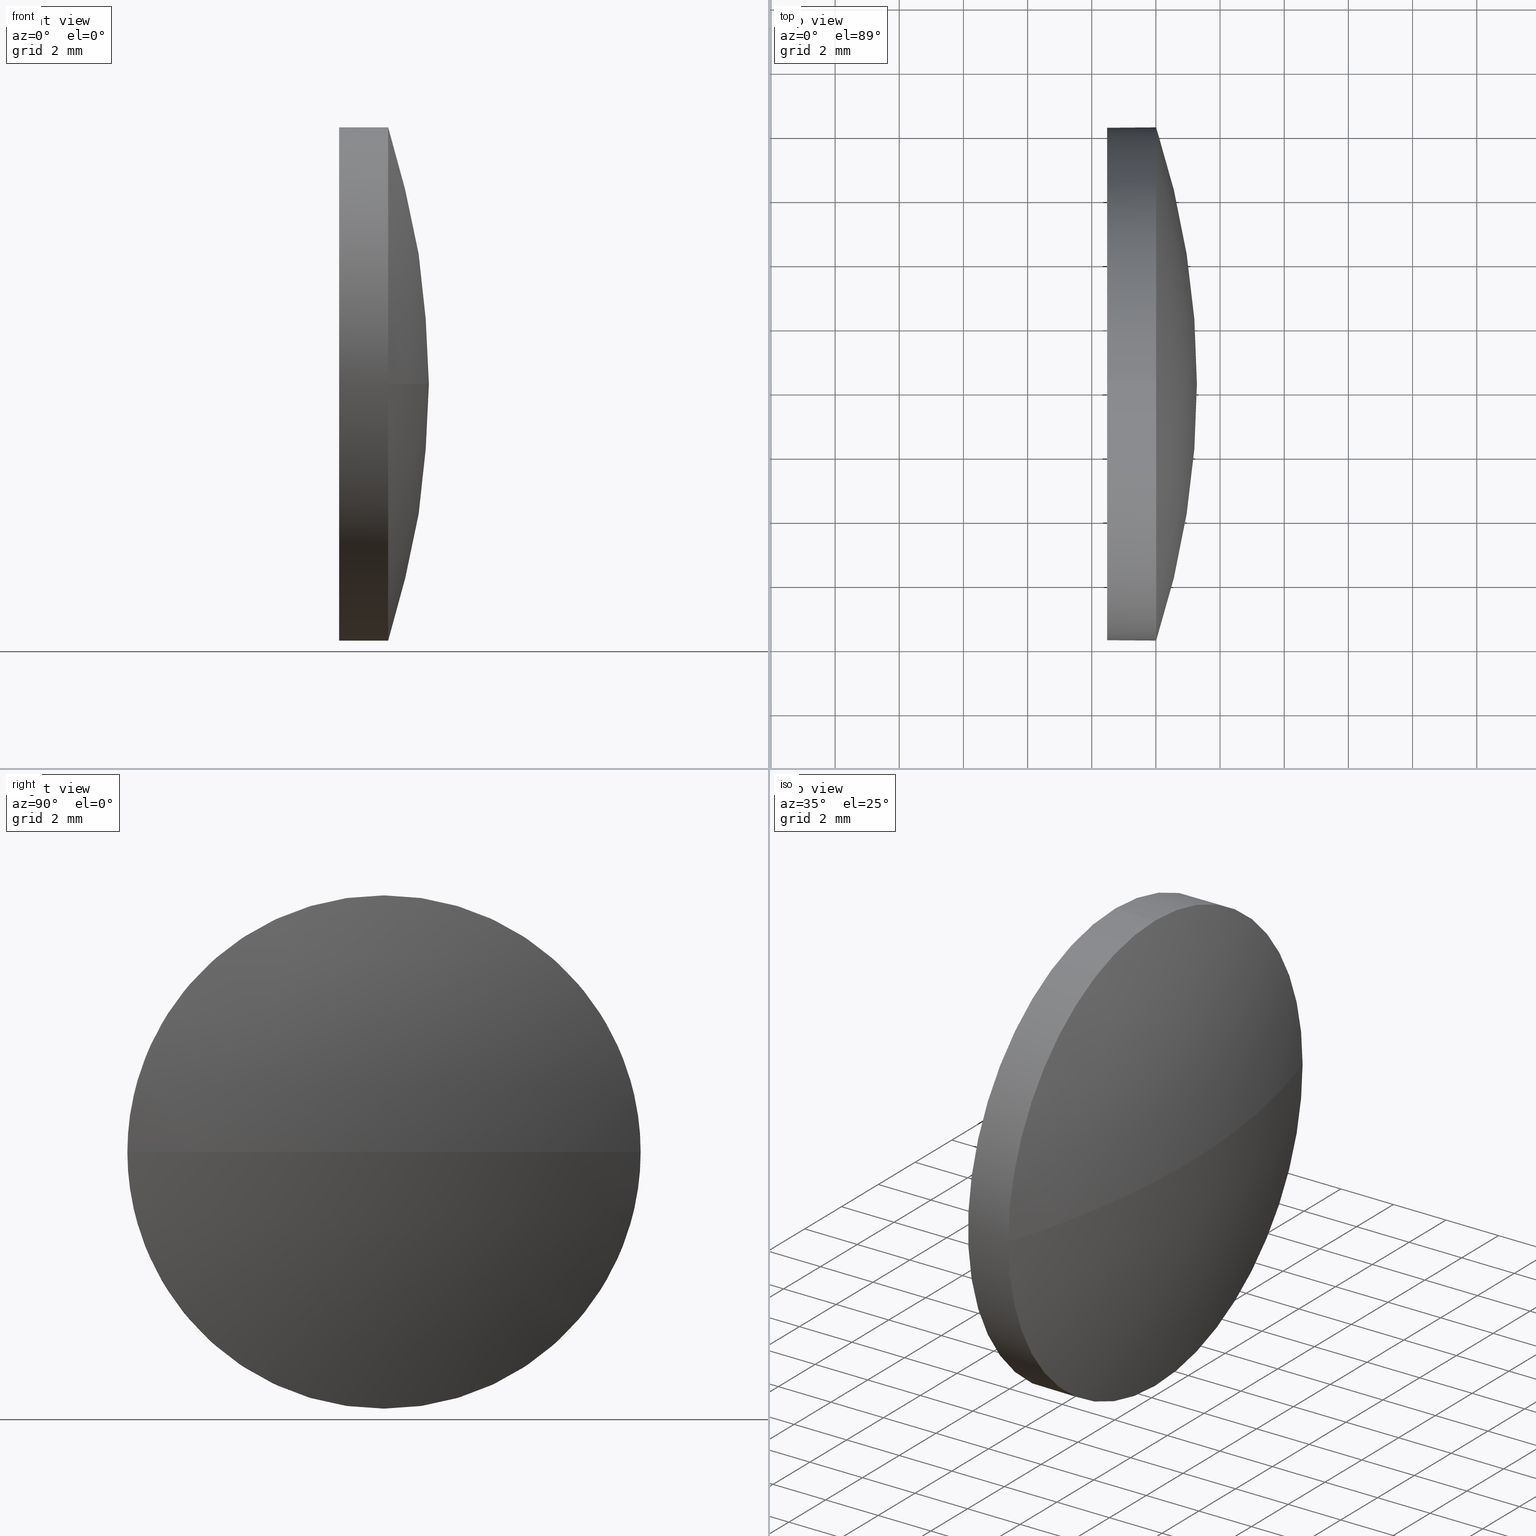
[diagram: canonical four-view strip — front | top / right | iso, engineering-drawing reading convention]
A machine part, canonical four-view strip (front | top / right | iso — engineering-drawing reading convention). The complete STEP part file that produces these views, byte-faithful:
ISO-10303-21;
HEADER;
FILE_DESCRIPTION (( 'STEP AP214' ),
    '1' );
FILE_NAME ('100201.STEP',
    '2019-05-22T07:16:52',
    ( '' ),
    ( '' ),
    'SwSTEP 2.0',
    'SolidWorks 2016',
    '' );
FILE_SCHEMA (( 'AUTOMOTIVE_DESIGN' ));
ENDSEC;

DATA;
#1 = ADVANCED_FACE ( 'NONE', ( #155 ), #119, .T. ) ;
#2 = APPLICATION_CONTEXT ( 'automotive_design' ) ;
#3 = PRESENTATION_LAYER_ASSIGNMENT (  '', '', ( #183 ) ) ;
#4 = DIRECTION ( 'NONE',  ( 0.0000000000000000000, 0.0000000000000000000, 1.000000000000000000 ) ) ;
#5 = CYLINDRICAL_SURFACE ( 'NONE', #16, 8.000000000000007100 ) ;
#6 = CARTESIAN_POINT ( 'NONE',  ( 500.8301248111171200, 80.19945685201562900, 0.0000000000000000000 ) ) ;
#7 = PRODUCT_DEFINITION_CONTEXT ( 'detailed design', #132, 'design' ) ;
#8 = DIRECTION ( 'NONE',  ( 0.0000000000000000000, -1.000000000000000000, -1.224646799147353200E-016 ) ) ;
#9 = DIRECTION ( 'NONE',  ( 0.0000000000000000000, -1.000000000000000000, 0.0000000000000000000 ) ) ;
#10 = CARTESIAN_POINT ( 'NONE',  ( 504.0080972841085400, 80.19945685201562900, 0.0000000000000000000 ) ) ;
#11 = CARTESIAN_POINT ( 'NONE',  ( 500.8301248111171200, 80.19945685201562900, 8.000000000000007100 ) ) ;
#12 = CARTESIAN_POINT ( 'NONE',  ( 502.4780972841085100, 80.19945685201562900, 0.0000000000000000000 ) ) ;
#13 = CARTESIAN_POINT ( 'NONE',  ( 502.4780972841085100, 80.19945685201562900, 0.0000000000000000000 ) ) ;
#14 = FACE_OUTER_BOUND ( 'NONE', #141, .T. ) ;
#15 = CIRCLE ( 'NONE', #125, 8.000000000000007100 ) ;
#16 = AXIS2_PLACEMENT_3D ( 'NONE', #6, #182, #152 ) ;
#17 = SHAPE_DEFINITION_REPRESENTATION ( #41, #97 ) ;
#18 = SURFACE_SIDE_STYLE ('',( #171 ) ) ;
#19 = SURFACE_SIDE_STYLE ('',( #102 ) ) ;
#20 = EDGE_LOOP ( 'NONE', ( #184, #104, #61, #55 ) ) ;
#21 = DIRECTION ( 'NONE',  ( -1.000000000000000000, -0.0000000000000000000, -0.0000000000000000000 ) ) ;
#22 = CARTESIAN_POINT ( 'NONE',  ( 479.4462468904077400, 80.19945685201564300, 0.0000000000000000000 ) ) ;
#23 = CARTESIAN_POINT ( 'NONE',  ( 505.2780972841085300, 80.19945685201564300, 0.0000000000000000000 ) ) ;
#24 = CARTESIAN_POINT ( 'NONE',  ( 504.0080972841085400, 80.19945685201562900, 0.0000000000000000000 ) ) ;
#25 = EDGE_LOOP ( 'NONE', ( #67, #39 ) ) ;
#26 = ORIENTED_EDGE ( 'NONE', *, *, #174, .F. ) ;
#27 = VERTEX_POINT ( 'NONE', #112 ) ;
#28 = VECTOR ( 'NONE', #153, 1000.000000000000000 ) ;
#29 = DIRECTION ( 'NONE',  ( 1.000000000000000000, 0.0000000000000000000, 0.0000000000000000000 ) ) ;
#30 = CARTESIAN_POINT ( 'NONE',  ( 502.4780972841085100, 80.19945685201562900, 0.0000000000000000000 ) ) ;
#31 = VERTEX_POINT ( 'NONE', #77 ) ;
#32 = DIRECTION ( 'NONE',  ( 0.0000000000000000000, 0.0000000000000000000, -1.000000000000000000 ) ) ;
#33 = EDGE_CURVE ( 'NONE', #62, #31, #38, .T. ) ;
#34 = DIRECTION ( 'NONE',  ( -1.000000000000000000, -0.0000000000000000000, -0.0000000000000000000 ) ) ;
#35 = CIRCLE ( 'NONE', #73, 8.000000000000007100 ) ;
#36 =( GEOMETRIC_REPRESENTATION_CONTEXT ( 3 ) GLOBAL_UNCERTAINTY_ASSIGNED_CONTEXT ( ( #162 ) ) GLOBAL_UNIT_ASSIGNED_CONTEXT ( ( #123, #136, #150 ) ) REPRESENTATION_CONTEXT ( 'NONE', 'WORKASPACE' ) );
#37 = CIRCLE ( 'NONE', #137, 8.000000000000007100 ) ;
#38 = CIRCLE ( 'NONE', #51, 25.83185039370084000 ) ;
#39 = ORIENTED_EDGE ( 'NONE', *, *, #145, .T. ) ;
#40 = FILL_AREA_STYLE_COLOUR ( '', #63 ) ;
#41 = PRODUCT_DEFINITION_SHAPE ( 'NONE', 'NONE',  #167 ) ;
#42 = EDGE_CURVE ( 'NONE', #170, #27, #35, .T. ) ;
#43 = APPLICATION_PROTOCOL_DEFINITION ( 'draft international standard', 'automotive_design', 1998, #132 ) ;
#44 = COLOUR_RGB ( '',1.000000000000000000, 1.000000000000000000, 1.000000000000000000 ) ;
#45 = DIRECTION ( 'NONE',  ( 0.0000000000000000000, 0.0000000000000000000, 1.000000000000000000 ) ) ;
#46 = SURFACE_STYLE_USAGE ( .BOTH. , #19 ) ;
#47 = ORIENTED_EDGE ( 'NONE', *, *, #128, .T. ) ;
#48 = ORIENTED_EDGE ( 'NONE', *, *, #42, .T. ) ;
#49 = DIRECTION ( 'NONE',  ( -1.000000000000000000, -0.0000000000000000000, -0.0000000000000000000 ) ) ;
#50 = AXIS2_PLACEMENT_3D ( 'NONE', #146, #49, #81 ) ;
#51 = AXIS2_PLACEMENT_3D ( 'NONE', #59, #161, #8 ) ;
#52 = ADVANCED_FACE ( 'NONE', ( #14 ), #5, .T. ) ;
#53 = AXIS2_PLACEMENT_3D ( 'NONE', #110, #94, #180 ) ;
#54 = STYLED_ITEM ( 'NONE', ( #135 ), #97 ) ;
#55 = ORIENTED_EDGE ( 'NONE', *, *, #128, .F. ) ;
#56 = PRESENTATION_LAYER_ASSIGNMENT (  '', '', ( #54 ) ) ;
#57 = FILL_AREA_STYLE ('',( #40 ) ) ;
#58 = CARTESIAN_POINT ( 'NONE',  ( 479.4462468904077400, 80.19945685201564300, 0.0000000000000000000 ) ) ;
#59 = CARTESIAN_POINT ( 'NONE',  ( 479.4462468904077400, 80.19945685201564300, 0.0000000000000000000 ) ) ;
#60 = DIRECTION ( 'NONE',  ( 0.0000000000000000000, 0.0000000000000000000, -1.000000000000000000 ) ) ;
#61 = ORIENTED_EDGE ( 'NONE', *, *, #66, .F. ) ;
#62 = VERTEX_POINT ( 'NONE', #23 ) ;
#63 = COLOUR_RGB ( '',1.000000000000000000, 1.000000000000000000, 1.000000000000000000 ) ;
#64 = CARTESIAN_POINT ( 'NONE',  ( 504.0080972841085400, 80.19945685201562900, 0.0000000000000000000 ) ) ;
#65 = CIRCLE ( 'NONE', #130, 25.83185039370084000 ) ;
#66 = EDGE_CURVE ( 'NONE', #89, #170, #78, .T. ) ;
#67 = ORIENTED_EDGE ( 'NONE', *, *, #86, .T. ) ;
#68 = ORIENTED_EDGE ( 'NONE', *, *, #42, .F. ) ;
#69 = MECHANICAL_DESIGN_GEOMETRIC_PRESENTATION_REPRESENTATION (  '', ( #54 ), #36 ) ;
#70 = AXIS2_PLACEMENT_3D ( 'NONE', #30, #29, #60 ) ;
#71 = FACE_OUTER_BOUND ( 'NONE', #156, .T. ) ;
#72 = SURFACE_STYLE_USAGE ( .BOTH. , #18 ) ;
#73 = AXIS2_PLACEMENT_3D ( 'NONE', #10, #21, #124 ) ;
#74 = DIRECTION ( 'NONE',  ( 0.0000000000000000000, 0.0000000000000000000, 1.000000000000000000 ) ) ;
#75 = CARTESIAN_POINT ( 'NONE',  ( 504.0080972841085400, 80.19945685201562900, 0.0000000000000000000 ) ) ;
#76 =( NAMED_UNIT ( * ) PLANE_ANGLE_UNIT ( ) SI_UNIT ( $, .RADIAN. ) );
#77 = CARTESIAN_POINT ( 'NONE',  ( 504.0080972841085400, 88.19945685201562900, 9.797174393178815800E-016 ) ) ;
#78 = CIRCLE ( 'NONE', #115, 8.000000000000007100 ) ;
#79 = EDGE_CURVE ( 'NONE', #27, #113, #181, .T. ) ;
#80 = DIRECTION ( 'NONE',  ( -1.000000000000000000, -0.0000000000000000000, -0.0000000000000000000 ) ) ;
#81 = DIRECTION ( 'NONE',  ( 0.0000000000000000000, 0.0000000000000000000, 1.000000000000000000 ) ) ;
#82 = DIRECTION ( 'NONE',  ( 0.0000000000000000000, 0.0000000000000000000, 1.000000000000000000 ) ) ;
#83 = MECHANICAL_DESIGN_GEOMETRIC_PRESENTATION_REPRESENTATION (  '', ( #183 ), #92 ) ;
#84 = EDGE_LOOP ( 'NONE', ( #26, #160, #48, #108, #133 ) ) ;
#85 = CLOSED_SHELL ( 'NONE', ( #52, #118, #1, #169, #116 ) ) ;
#86 = EDGE_CURVE ( 'NONE', #113, #99, #15, .T. ) ;
#87 = SPHERICAL_SURFACE ( 'NONE', #172, 25.83185039370084000 ) ;
#88 = ORIENTED_EDGE ( 'NONE', *, *, #96, .T. ) ;
#89 = VERTEX_POINT ( 'NONE', #143 ) ;
#90 = FACE_OUTER_BOUND ( 'NONE', #84, .T. ) ;
#91 = CARTESIAN_POINT ( 'NONE',  ( 502.4780972841085100, 80.19945685201562900, -8.000000000000007100 ) ) ;
#92 =( GEOMETRIC_REPRESENTATION_CONTEXT ( 3 ) GLOBAL_UNCERTAINTY_ASSIGNED_CONTEXT ( ( #185 ) ) GLOBAL_UNIT_ASSIGNED_CONTEXT ( ( #151, #76, #179 ) ) REPRESENTATION_CONTEXT ( 'NONE', 'WORKASPACE' ) );
#93 = DIRECTION ( 'NONE',  ( 0.0000000000000000000, 0.0000000000000000000, 1.000000000000000000 ) ) ;
#94 = DIRECTION ( 'NONE',  ( 0.0000000000000000000, 0.0000000000000000000, 1.000000000000000000 ) ) ;
#95 = DIRECTION ( 'NONE',  ( -1.000000000000000000, 0.0000000000000000000, 0.0000000000000000000 ) ) ;
#96 = EDGE_CURVE ( 'NONE', #27, #31, #37, .T. ) ;
#97 = ADVANCED_BREP_SHAPE_REPRESENTATION ( '100201', ( #131, #177 ), #103 ) ;
#98 = ORIENTED_EDGE ( 'NONE', *, *, #96, .F. ) ;
#99 = VERTEX_POINT ( 'NONE', #91 ) ;
#100 = PRODUCT_DEFINITION_FORMATION_WITH_SPECIFIED_SOURCE ( '�κ�', '', #114, .NOT_KNOWN. ) ;
#101 = AXIS2_PLACEMENT_3D ( 'NONE', #12, #154, #163 ) ;
#102 = SURFACE_STYLE_FILL_AREA ( #107 ) ;
#103 =( GEOMETRIC_REPRESENTATION_CONTEXT ( 3 ) GLOBAL_UNCERTAINTY_ASSIGNED_CONTEXT ( ( #121 ) ) GLOBAL_UNIT_ASSIGNED_CONTEXT ( ( #140, #175, #120 ) ) REPRESENTATION_CONTEXT ( 'NONE', 'WORKASPACE' ) );
#104 = ORIENTED_EDGE ( 'NONE', *, *, #164, .T. ) ;
#105 = APPLICATION_PROTOCOL_DEFINITION ( 'draft international standard', 'automotive_design', 1998, #2 ) ;
#106 = CIRCLE ( 'NONE', #101, 8.000000000000007100 ) ;
#107 = FILL_AREA_STYLE ('',( #159 ) ) ;
#108 = ORIENTED_EDGE ( 'NONE', *, *, #79, .T. ) ;
#109 = ORIENTED_EDGE ( 'NONE', *, *, #174, .T. ) ;
#110 = CARTESIAN_POINT ( 'NONE',  ( 479.4462468904077400, 80.19945685201564300, 0.0000000000000000000 ) ) ;
#111 = CARTESIAN_POINT ( 'NONE',  ( 504.0080972841085400, 72.19945685201562900, 0.0000000000000000000 ) ) ;
#112 = CARTESIAN_POINT ( 'NONE',  ( 504.0080972841085400, 80.19945685201562900, 8.000000000000007100 ) ) ;
#113 = VERTEX_POINT ( 'NONE', #138 ) ;
#114 = PRODUCT ( '100201', '100201', '', ( #176 ) ) ;
#115 = AXIS2_PLACEMENT_3D ( 'NONE', #64, #166, #82 ) ;
#116 = ADVANCED_FACE ( 'NONE', ( #165 ), #139, .F. ) ;
#117 = CYLINDRICAL_SURFACE ( 'NONE', #50, 8.000000000000007100 ) ;
#118 = ADVANCED_FACE ( 'NONE', ( #71 ), #87, .T. ) ;
#119 = SPHERICAL_SURFACE ( 'NONE', #53, 25.83185039370084000 ) ;
#120 =( NAMED_UNIT ( * ) SI_UNIT ( $, .STERADIAN. ) SOLID_ANGLE_UNIT ( ) );
#121 = UNCERTAINTY_MEASURE_WITH_UNIT (LENGTH_MEASURE( 1.000000000000000100E-005 ), #140, 'distance_accuracy_value', 'NONE');
#122 = DIRECTION ( 'NONE',  ( 1.000000000000000000, 0.0000000000000000000, 0.0000000000000000000 ) ) ;
#123 =( LENGTH_UNIT ( ) NAMED_UNIT ( * ) SI_UNIT ( .MILLI., .METRE. ) );
#124 = DIRECTION ( 'NONE',  ( 0.0000000000000000000, 0.0000000000000000000, 1.000000000000000000 ) ) ;
#125 = AXIS2_PLACEMENT_3D ( 'NONE', #13, #34, #126 ) ;
#126 = DIRECTION ( 'NONE',  ( 0.0000000000000000000, 0.0000000000000000000, 1.000000000000000000 ) ) ;
#127 = ORIENTED_EDGE ( 'NONE', *, *, #33, .T. ) ;
#128 = EDGE_CURVE ( 'NONE', #31, #89, #129, .T. ) ;
#129 = CIRCLE ( 'NONE', #158, 8.000000000000007100 ) ;
#130 = AXIS2_PLACEMENT_3D ( 'NONE', #22, #32, #95 ) ;
#131 = MANIFOLD_SOLID_BREP ( '��ת1', #85 ) ;
#132 = APPLICATION_CONTEXT ( 'automotive_design' ) ;
#133 = ORIENTED_EDGE ( 'NONE', *, *, #145, .F. ) ;
#134 = CARTESIAN_POINT ( 'NONE',  ( 0.0000000000000000000, 0.0000000000000000000, 0.0000000000000000000 ) ) ;
#135 = PRESENTATION_STYLE_ASSIGNMENT (( #72 ) ) ;
#136 =( NAMED_UNIT ( * ) PLANE_ANGLE_UNIT ( ) SI_UNIT ( $, .RADIAN. ) );
#137 = AXIS2_PLACEMENT_3D ( 'NONE', #24, #80, #93 ) ;
#138 = CARTESIAN_POINT ( 'NONE',  ( 502.4780972841085100, 80.19945685201562900, 8.000000000000007100 ) ) ;
#139 = PLANE ( 'NONE',  #70 ) ;
#140 =( LENGTH_UNIT ( ) NAMED_UNIT ( * ) SI_UNIT ( .MILLI., .METRE. ) );
#141 = EDGE_LOOP ( 'NONE', ( #47, #109, #149, #142, #88 ) ) ;
#142 = ORIENTED_EDGE ( 'NONE', *, *, #79, .F. ) ;
#143 = CARTESIAN_POINT ( 'NONE',  ( 504.0080972841085400, 80.19945685201562900, -8.000000000000007100 ) ) ;
#144 = CARTESIAN_POINT ( 'NONE',  ( 500.8301248111171200, 80.19945685201562900, -8.000000000000007100 ) ) ;
#145 = EDGE_CURVE ( 'NONE', #99, #113, #106, .T. ) ;
#146 = CARTESIAN_POINT ( 'NONE',  ( 500.8301248111171200, 80.19945685201562900, 0.0000000000000000000 ) ) ;
#147 = LINE ( 'NONE', #144, #28 ) ;
#148 = VECTOR ( 'NONE', #168, 1000.000000000000000 ) ;
#149 = ORIENTED_EDGE ( 'NONE', *, *, #86, .F. ) ;
#150 =( NAMED_UNIT ( * ) SI_UNIT ( $, .STERADIAN. ) SOLID_ANGLE_UNIT ( ) );
#151 =( LENGTH_UNIT ( ) NAMED_UNIT ( * ) SI_UNIT ( .MILLI., .METRE. ) );
#152 = DIRECTION ( 'NONE',  ( 0.0000000000000000000, 0.0000000000000000000, 1.000000000000000000 ) ) ;
#153 = DIRECTION ( 'NONE',  ( -1.000000000000000000, -0.0000000000000000000, -0.0000000000000000000 ) ) ;
#154 = DIRECTION ( 'NONE',  ( -1.000000000000000000, -0.0000000000000000000, -0.0000000000000000000 ) ) ;
#155 = FACE_OUTER_BOUND ( 'NONE', #20, .T. ) ;
#156 = EDGE_LOOP ( 'NONE', ( #173, #127, #98, #68 ) ) ;
#157 = PRESENTATION_STYLE_ASSIGNMENT (( #46 ) ) ;
#158 = AXIS2_PLACEMENT_3D ( 'NONE', #75, #178, #4 ) ;
#159 = FILL_AREA_STYLE_COLOUR ( '', #44 ) ;
#160 = ORIENTED_EDGE ( 'NONE', *, *, #66, .T. ) ;
#161 = DIRECTION ( 'NONE',  ( 0.0000000000000000000, -1.224646799147353200E-016, 1.000000000000000000 ) ) ;
#162 = UNCERTAINTY_MEASURE_WITH_UNIT (LENGTH_MEASURE( 1.000000000000000100E-005 ), #123, 'distance_accuracy_value', 'NONE');
#163 = DIRECTION ( 'NONE',  ( 0.0000000000000000000, 0.0000000000000000000, 1.000000000000000000 ) ) ;
#164 = EDGE_CURVE ( 'NONE', #62, #170, #65, .T. ) ;
#165 = FACE_OUTER_BOUND ( 'NONE', #25, .T. ) ;
#166 = DIRECTION ( 'NONE',  ( -1.000000000000000000, -0.0000000000000000000, -0.0000000000000000000 ) ) ;
#167 = PRODUCT_DEFINITION ( 'δ֪', '', #100, #7 ) ;
#168 = DIRECTION ( 'NONE',  ( -1.000000000000000000, -0.0000000000000000000, -0.0000000000000000000 ) ) ;
#169 = ADVANCED_FACE ( 'NONE', ( #90 ), #117, .T. ) ;
#170 = VERTEX_POINT ( 'NONE', #111 ) ;
#171 = SURFACE_STYLE_FILL_AREA ( #57 ) ;
#172 = AXIS2_PLACEMENT_3D ( 'NONE', #58, #45, #9 ) ;
#173 = ORIENTED_EDGE ( 'NONE', *, *, #164, .F. ) ;
#174 = EDGE_CURVE ( 'NONE', #89, #99, #147, .T. ) ;
#175 =( NAMED_UNIT ( * ) PLANE_ANGLE_UNIT ( ) SI_UNIT ( $, .RADIAN. ) );
#176 = PRODUCT_CONTEXT ( 'NONE', #2, 'mechanical' ) ;
#177 = AXIS2_PLACEMENT_3D ( 'NONE', #134, #74, #122 ) ;
#178 = DIRECTION ( 'NONE',  ( -1.000000000000000000, -0.0000000000000000000, -0.0000000000000000000 ) ) ;
#179 =( NAMED_UNIT ( * ) SI_UNIT ( $, .STERADIAN. ) SOLID_ANGLE_UNIT ( ) );
#180 = DIRECTION ( 'NONE',  ( 0.0000000000000000000, -1.000000000000000000, 0.0000000000000000000 ) ) ;
#181 = LINE ( 'NONE', #11, #148 ) ;
#182 = DIRECTION ( 'NONE',  ( -1.000000000000000000, -0.0000000000000000000, -0.0000000000000000000 ) ) ;
#183 = STYLED_ITEM ( 'NONE', ( #157 ), #131 ) ;
#184 = ORIENTED_EDGE ( 'NONE', *, *, #33, .F. ) ;
#185 = UNCERTAINTY_MEASURE_WITH_UNIT (LENGTH_MEASURE( 1.000000000000000100E-005 ), #151, 'distance_accuracy_value', 'NONE');
#186 = PRODUCT_RELATED_PRODUCT_CATEGORY ( 'part', '', ( #114 ) ) ;
ENDSEC;
END-ISO-10303-21;
